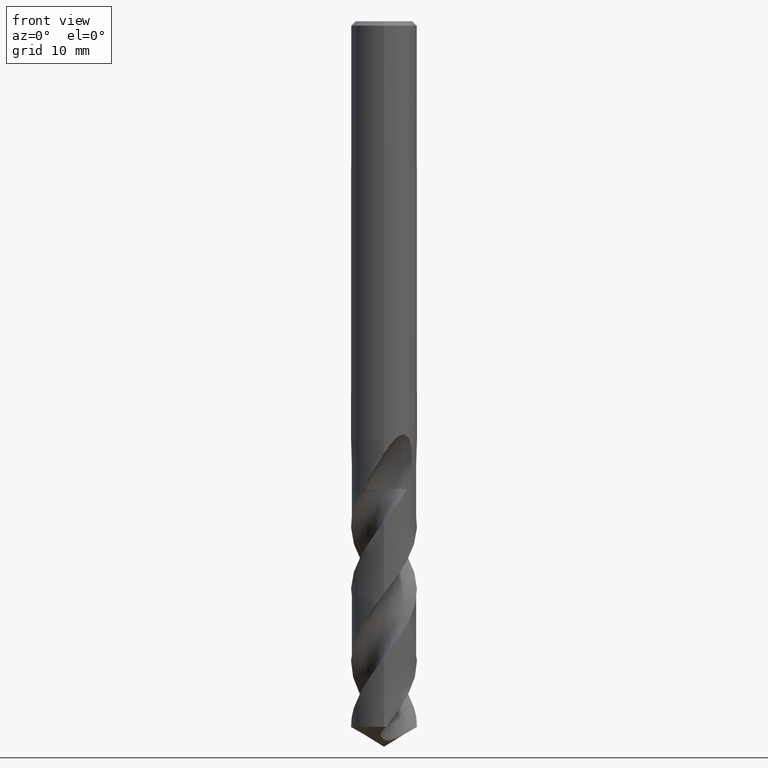
[diagram: clean part render]
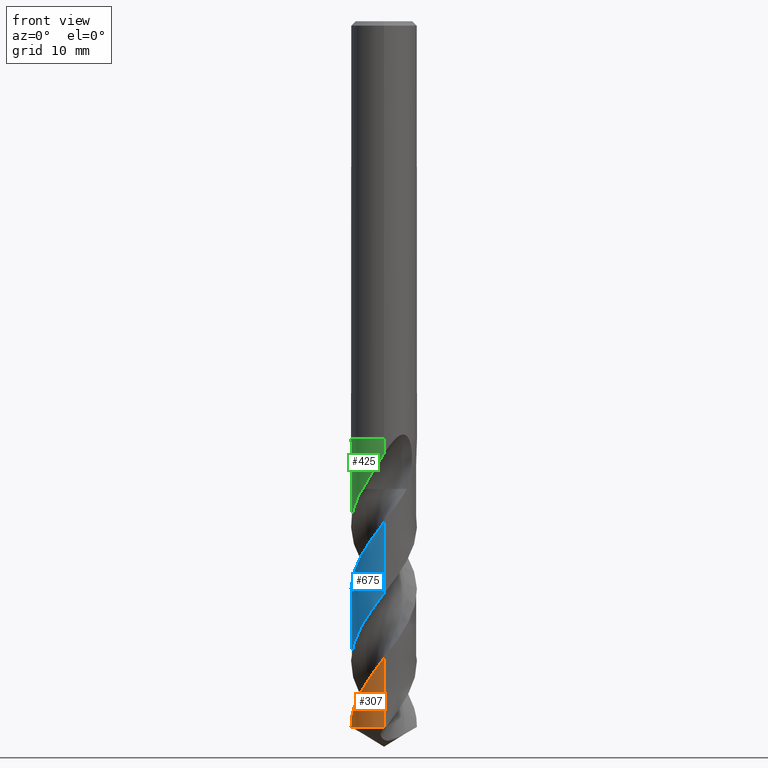
[diagram: same view with three faces highlighted in distinct colors, each labeled with its STEP entity id]
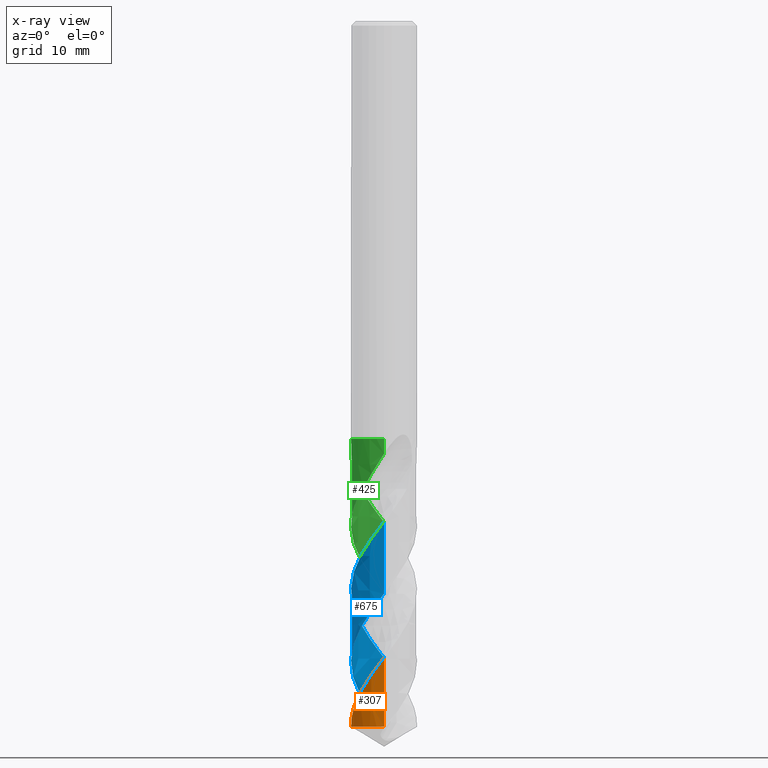
[diagram: x-ray of the same camera — body ghosted, the three highlighted faces saturated]
A machine part, front view with three faces highlighted in distinct colors.
The next image is the same camera in x-ray (body ghosted, the three faces saturated) — at least one of them is partly hidden behind the body in this view.
Their STEP definitions:

[orange] entity #307 — the highlighted conical surface has half-angle 0 deg.
#307=ADVANCED_FACE('',(#779),#780,.T.);
#387=VERTEX_POINT('',#868);
#441=VERTEX_POINT('',#926);
#485=VERTEX_POINT('',#974);
#549=EDGE_CURVE('',#441,#387,#1044,.T.);
#577=EDGE_CURVE('',#441,#485,#1074,.T.);
#695=EDGE_CURVE('',#387,#485,#1201,.T.);
#779=FACE_OUTER_BOUND('',#2352,.T.);
#780=CONICAL_SURFACE('',#2353,2.99995,3.81717005294894E-006);
#868=CARTESIAN_POINT('',(6.94614862813987E-014,-2.99997606256902,-57.9264292563744));
#926=CARTESIAN_POINT('',(3.67142020970811E-016,-3.0,-64.1974181429173));
#974=CARTESIAN_POINT('',(-2.9991532543519,0.0712724133896041,-64.1974181429173));
#1044=LINE('',#3505,#3506);
#1074=CIRCLE('',#3641,3.0);
#1201=B_SPLINE_CURVE_WITH_KNOTS('',3,(#4751,#4752,#4753,#4754,#4755,#4756,#4757,#4758,#4759,#4760,#4761,#4762,#4763,#4764,#4765,#4766,#4767,#4768,#4769,#4770,#4771,#4772,#4773,#4774,#4775,#4776,#4777,#4778,#4779,#4780,#4781,#4782,#4783,#4784,#4785,#4786,#4787,#4788,#4789,#4790,#4791,#4792,#4793,#4794,#4795,#4796,#4797,#4798,#4799,#4800,#4801,#4802,#4803,#4804,#4805,#4806,#4807,#4808,#4809,#4810,#4811,#4812,#4813,#4814,#4815,#4816,#4817,#4818,#4819,#4820,#4821,#4822,#4823,#4824,#4825,#4826,#4827,#4828,#4829,#4830,#4831,#4832,#4833,#4834),.UNSPECIFIED.,.F.,.F.,(4,2,2,2,2,2,2,2,2,2,2,2,2,2,2,2,2,2,2,2,2,2,2,2,2,2,2,2,2,2,2,2,2,2,2,2,2,2,2,2,2,4),(0.0,0.0993045210292612,0.133810146586551,0.198759543445894,0.516186536757586,0.627581894454717,0.698954349679033,0.766036704304854,0.856023660538922,0.957565071725223,1.34121237791108,1.63577937169116,1.9223173825441,3.79579356254117,5.1535138976402,5.91578713996514,6.68924775879507,7.07780415372784,7.44370135876606,8.79860002173452,9.56043517471912,10.3343050638382,10.7225490389914,11.0750226256082,12.4456977797414,13.2055550546594,13.9797088139891,14.7546094927896,16.2481453766306,16.4087732444605,17.6175978140626,18.3915158747033,19.9131723987767,19.963088714426,21.5787231515628,21.8964662538714,23.0955762658809,23.3231324880275,23.74801103866,25.2391784537945,25.6146622117499,26.7456793365661),.UNSPECIFIED.);
#2352=EDGE_LOOP('',(#4938,#4939,#4940));
#2353=AXIS2_PLACEMENT_3D('',#4941,#4942,#4943);
#3505=CARTESIAN_POINT('',(3.67135897939042E-016,-2.99995,-51.0987090714587));
#3506=VECTOR('',#5211,1.0);
#3641=AXIS2_PLACEMENT_3D('',#5232,#5233,#5234);
#4751=CARTESIAN_POINT('',(-2.08517356567501,2.15674644092882,-42.541));
#4752=CARTESIAN_POINT('',(-2.07136653232089,2.17009542306064,-42.5679607172071));
#4753=CARTESIAN_POINT('',(-2.05740288305878,2.18333963844889,-42.5949154837636));
#4754=CARTESIAN_POINT('',(-2.03833944362332,2.2010732531229,-42.6311910884536));
#4755=CARTESIAN_POINT('',(-2.03340304941831,2.20563452090541,-42.6405384031818));
#4756=CARTESIAN_POINT('',(-2.01910880561475,2.21875349629504,-42.6674654107753));
#4757=CARTESIAN_POINT('',(-2.00970140035085,2.22727860720342,-42.6850154723345));
#4758=CARTESIAN_POINT('',(-1.95378588229277,2.2773031306889,-42.7882460879038));
#4759=CARTESIAN_POINT('',(-1.90635447813945,2.31720611768696,-42.8713793274959));
#4760=CARTESIAN_POINT('',(-1.83822802720539,2.37085201738776,-42.9848535458934));
#4761=CARTESIAN_POINT('',(-1.82032208032303,2.38462963037159,-43.0141781612235));
#4762=CARTESIAN_POINT('',(-1.79052392669974,2.4070213715459,-43.0622691032216));
#4763=CARTESIAN_POINT('',(-1.77880494093268,2.4156951181162,-43.0810075399326));
#4764=CARTESIAN_POINT('',(-1.75589639937263,2.43239258513913,-43.1173443421457));
#4765=CARTESIAN_POINT('',(-1.74473046426743,2.44041445881005,-43.134922773311));
#4766=CARTESIAN_POINT('',(-1.71842371312067,2.4590403648595,-43.1760792555723));
#4767=CARTESIAN_POINT('',(-1.7032491589786,2.46957542179868,-43.1996223157209));
#4768=CARTESIAN_POINT('',(-1.67074038757862,2.49170252231617,-43.2497692509679));
#4769=CARTESIAN_POINT('',(-1.65322084627187,2.5033638553553,-43.2766101266082));
#4770=CARTESIAN_POINT('',(-1.56835059418453,2.55855591111031,-43.4065077294176));
#4771=CARTESIAN_POINT('',(-1.49994287342647,2.59921755867158,-43.5104159267366));
#4772=CARTESIAN_POINT('',(-1.37725341042054,2.6657792032713,-43.6937514899955));
#4773=CARTESIAN_POINT('',(-1.32314134453782,2.69304569446819,-43.7736260769849));
#4774=CARTESIAN_POINT('',(-1.21489793697561,2.74354289514315,-43.9309337941174));
#4775=CARTESIAN_POINT('',(-1.16079181051065,2.766872401133,-44.00831231946));
#4776=CARTESIAN_POINT('',(-0.747245220754315,2.93088177038523,-44.5918968135642));
#4777=CARTESIAN_POINT('',(-0.364400881494872,3.00262188342559,-45.092128487733));
#4778=CARTESIAN_POINT('',(0.301246600681809,2.99784399221996,-45.9653645696837));
#4779=CARTESIAN_POINT('',(0.579476629108054,2.95672180867058,-46.3309189368463));
#4780=CARTESIAN_POINT('',(0.998862417171053,2.83312411604424,-46.9035751683104));
#4781=CARTESIAN_POINT('',(1.14584609008904,2.77692373639258,-47.1091631917107));
#4782=CARTESIAN_POINT('',(1.4315944728874,2.64112563558017,-47.5242864739127));
#4783=CARTESIAN_POINT('',(1.56989211794067,2.56134592433265,-47.7330769820313));
#4784=CARTESIAN_POINT('',(1.76722743099324,2.42548043137687,-48.0470383029896));
#4785=CARTESIAN_POINT('',(1.83137449139064,2.37741903511863,-48.1519472001656));
#4786=CARTESIAN_POINT('',(1.95205726057974,2.2792112279197,-48.3557585299183));
#4787=CARTESIAN_POINT('',(2.00874409501485,2.22941103653896,-48.4545300449874));
#4788=CARTESIAN_POINT('',(2.26617821463591,1.98546344707412,-48.9196411149982));
#4789=CARTESIAN_POINT('',(2.44117035659592,1.76591533308861,-49.2845494919284));
#4790=CARTESIAN_POINT('',(2.66316777246103,1.38992974457594,-49.8564925805135));
#4791=CARTESIAN_POINT('',(2.73226734526263,1.24861296450732,-50.0620615484498));
#4792=CARTESIAN_POINT('',(2.84857569277941,0.954321713538972,-50.4772815153982));
#4793=CARTESIAN_POINT('',(2.89529427130937,0.801519973303657,-50.6862126930617));
#4794=CARTESIAN_POINT('',(2.94687847817654,0.567464801588643,-51.0002666278727));
#4795=CARTESIAN_POINT('',(2.9609762632949,0.48860391767592,-51.1051129813927));
#4796=CARTESIAN_POINT('',(2.98182217742696,0.33723559661302,-51.3052606348573));
#4797=CARTESIAN_POINT('',(2.98911592463882,0.264900838059879,-51.4004423135003));
#4798=CARTESIAN_POINT('',(3.01189817424962,-0.0895856301060033,-51.8663044604255));
#4799=CARTESIAN_POINT('',(2.99009601768584,-0.37286726919721,-52.2354660472074));
#4800=CARTESIAN_POINT('',(2.89500430446638,-0.802040163520816,-52.8112638235063));
#4801=CARTESIAN_POINT('',(2.84916156557794,-0.952128300489595,-53.0163849730299));
#4802=CARTESIAN_POINT('',(2.73345952294073,-1.24635871469747,-53.4312339839894));
#4803=CARTESIAN_POINT('',(2.66328988795835,-1.39001764375242,-53.640269222725));
#4804=CARTESIAN_POINT('',(2.50058711270984,-1.66504804598964,-54.0589710332706));
#4805=CARTESIAN_POINT('',(2.40836370596997,-1.79585014680383,-54.2678034445766));
#4806=CARTESIAN_POINT('',(2.10926954161825,-2.15535948931925,-54.881245255476));
#4807=CARTESIAN_POINT('',(1.87696516354511,-2.36045916975034,-55.2828624397855));
#4808=CARTESIAN_POINT('',(1.58950605847232,-2.54447932827907,-55.7299853791503));
#4809=CARTESIAN_POINT('',(1.5613059390824,-2.5618798968961,-55.7733932632667));
#4810=CARTESIAN_POINT('',(1.31848605543376,-2.70621185508577,-56.1436964306426));
#4811=CARTESIAN_POINT('',(1.08901376827304,-2.80644013303654,-56.4700096966144));
#4812=CARTESIAN_POINT('',(0.696589853822116,-2.92234611492188,-57.0061331733585));
#4813=CARTESIAN_POINT('',(0.540112726430063,-2.95526525027199,-57.2147934067345));
#4814=CARTESIAN_POINT('',(0.0705410059283623,-3.01551952592611,-57.8358235375508));
#4815=CARTESIAN_POINT('',(-0.245227733814685,-3.0063882109545,-58.244963146434));
#4816=CARTESIAN_POINT('',(-0.564028813663771,-2.94649809963033,-58.6699266597098));
#4817=CARTESIAN_POINT('',(-0.574143298194193,-2.94454399359108,-58.6834229535943));
#4818=CARTESIAN_POINT('',(-0.911327183544998,-2.8775969913416,-59.1338973602411));
#4819=CARTESIAN_POINT('',(-1.22546484117299,-2.75852072204823,-59.5689673763528));
#4820=CARTESIAN_POINT('',(-1.57017215392427,-2.55710197654036,-60.0919321143349));
#4821=CARTESIAN_POINT('',(-1.62570042227381,-2.52216303324169,-60.1778258807803));
#4822=CARTESIAN_POINT('',(-1.88505974063368,-2.34685131854478,-60.588328203468));
#4823=CARTESIAN_POINT('',(-2.07224830768865,-2.18335622461565,-60.9121462562362));
#4824=CARTESIAN_POINT('',(-2.26855404699597,-1.96362035761514,-61.2981569835071));
#4825=CARTESIAN_POINT('',(-2.29903926488694,-1.92783889480219,-61.3597103873753));
#4826=CARTESIAN_POINT('',(-2.38400329869486,-1.82323051583794,-61.5362251852768));
#4827=CARTESIAN_POINT('',(-2.43629237501203,-1.75274425658912,-61.6510597828984));
#4828=CARTESIAN_POINT('',(-2.65778322136612,-1.42508927606078,-62.1697459933858));
#4829=CARTESIAN_POINT('',(-2.78997289626212,-1.14494213587287,-62.5714499088032));
#4830=CARTESIAN_POINT('',(-2.89916334839268,-0.775140028463159,-63.0766182964137));
#4831=CARTESIAN_POINT('',(-2.91822648125649,-0.699956286106937,-63.1782022854915));
#4832=CARTESIAN_POINT('',(-2.98292787123912,-0.395775203409284,-63.5860750600233));
#4833=CARTESIAN_POINT('',(-3.00470479015349,-0.162386172242175,-63.8913763066836));
#4834=CARTESIAN_POINT('',(-2.9991532543519,0.071272413389631,-64.1974181429173));
#4938=ORIENTED_EDGE('',*,*,#549,.T.);
#4939=ORIENTED_EDGE('',*,*,#695,.T.);
#4940=ORIENTED_EDGE('',*,*,#577,.F.);
#4941=CARTESIAN_POINT('',(0.0,0.0,-51.0987090714587));
#4942=DIRECTION('',(0.0,-0.0,-1.0));
#4943=DIRECTION('',(0.0,1.0,0.0));
#5211=DIRECTION('',(-4.67453070045043E-022,3.81717005293967E-006,0.999999999992715));
#5232=CARTESIAN_POINT('',(0.0,0.0,-64.1974181429173));
#5233=DIRECTION('',(0.0,0.0,-1.0));
#5234=DIRECTION('',(0.0,1.0,0.0));

[blue] entity #675 — the highlighted conical surface has half-angle 0 deg.
#287=EDGE_CURVE('',#629,#377,#758,.T.);
#357=EDGE_CURVE('',#629,#683,#835,.T.);
#377=VERTEX_POINT('',#856);
#405=EDGE_CURVE('',#501,#683,#888,.T.);
#423=EDGE_CURVE('',#647,#501,#907,.T.);
#439=EDGE_CURVE('',#377,#647,#924,.T.);
#501=VERTEX_POINT('',#991);
#629=VERTEX_POINT('',#1129);
#647=VERTEX_POINT('',#1150);
#675=ADVANCED_FACE('',(#1179),#1180,.T.);
#683=VERTEX_POINT('',#1189);
#758=B_SPLINE_CURVE_WITH_KNOTS('',3,(#2188,#2189,#2190,#2191,#2192,#2193,#2194,#2195,#2196,#2197,#2198,#2199,#2200,#2201,#2202,#2203,#2204,#2205,#2206,#2207,#2208,#2209,#2210,#2211,#2212,#2213,#2214,#2215,#2216,#2217,#2218,#2219,#2220,#2221,#2222,#2223,#2224,#2225,#2226,#2227,#2228,#2229,#2230,#2231,#2232,#2233,#2234,#2235,#2236,#2237,#2238,#2239,#2240,#2241,#2242,#2243,#2244,#2245,#2246,#2247,#2248,#2249,#2250,#2251,#2252,#2253,#2254,#2255,#2256,#2257,#2258,#2259,#2260,#2261),.UNSPECIFIED.,.F.,.F.,(4,2,2,2,2,2,2,2,2,2,2,2,2,2,2,2,2,2,2,2,2,2,2,2,2,2,2,2,2,2,2,2,2,2,2,2,4),(0.0,0.734443559610835,2.28909020284953,3.87107672440052,4.52092565825091,4.91625280009172,5.51545167710066,6.6136024122401,7.39941377184517,8.36751806394183,9.15465356459216,9.91633170437378,11.4959157069107,12.287083807646,12.8988367862176,13.8595049052138,14.646903637702,15.4386845711018,17.0182129384811,17.8092923130332,18.416636972115,19.766660296907,20.054223627147,20.9482154479031,21.3488712235484,21.9156118933917,23.0006172359424,24.9596405400062,25.9032294978141,26.1351377107136,26.2262112697147,26.4138152138454,26.5309473395437,26.6581164613636,26.8612732997372,27.1112933916468,27.4847013236414),.UNSPECIFIED.);
#835=CIRCLE('',#2620,3.0);
#856=CARTESIAN_POINT('',(2.14998726002023E-014,-2.9999537544148,-52.082268816943));
#888=LINE('',#2967,#2968);
#907=B_SPLINE_CURVE_WITH_KNOTS('',3,(#3033,#3034,#3035,#3036,#3037,#3038,#3039,#3040,#3041,#3042,#3043,#3044,#3045,#3046,#3047,#3048,#3049,#3050,#3051,#3052,#3053,#3054,#3055,#3056,#3057,#3058,#3059,#3060,#3061,#3062,#3063,#3064,#3065,#3066,#3067,#3068,#3069,#3070,#3071,#3072,#3073,#3074,#3075,#3076,#3077,#3078,#3079,#3080,#3081,#3082,#3083,#3084,#3085,#3086,#3087,#3088,#3089,#3090,#3091,#3092,#3093,#3094,#3095,#3096,#3097,#3098,#3099,#3100,#3101,#3102,#3103,#3104,#3105,#3106,#3107,#3108,#3109,#3110,#3111,#3112,#3113,#3114,#3115,#3116),.UNSPECIFIED.,.F.,.F.,(4,2,2,2,2,2,2,2,2,2,2,2,2,2,2,2,2,2,2,2,2,2,2,2,2,2,2,2,2,2,2,2,2,2,2,2,2,2,2,2,2,4),(0.0,0.0993045209650223,0.133810146428428,0.198759542952531,0.516186536699996,0.62758189448021,0.698954349675365,0.766036704284108,0.856023660495429,0.957565071765724,1.34121237799706,1.63577937175332,1.92231738243589,3.79579359251668,5.15351398343088,5.91578721984827,6.68924783986393,7.07780423442178,7.4437013965498,8.79860010794029,9.56043525586342,10.3343051465982,10.7225491212389,11.0750226756851,12.4456979071229,13.2055551735477,13.9797089353509,14.754609609826,16.2481457494753,16.408773560545,17.6175985892719,18.3915166199408,19.9131731669648,19.9630894831172,21.5787239955728,21.896467030199,23.0955768713887,23.3231330582614,23.7480115365779,25.2391787308531,25.6146624317587,26.7456793902221),.UNSPECIFIED.);
#924=LINE('',#3164,#3165);
#991=CARTESIAN_POINT('',(-8.38946031381558E-014,2.99997606256902,-57.9264292563744));
#1129=CARTESIAN_POINT('',(-0.183229110471668,2.9943992875159,-64.1974181429173));
#1150=CARTESIAN_POINT('',(-1.14867862420034E-015,-2.99992889663983,-45.5701735662399));
#1179=FACE_OUTER_BOUND('',#4532,.T.);
#1180=CONICAL_SURFACE('',#4533,2.99995,3.81717005294894E-006);
#1189=CARTESIAN_POINT('',(-3.67577094231066E-016,3.0,-64.1974181429173));
#2188=CARTESIAN_POINT('',(-0.183229110471697,2.99439928751591,-64.1974181429173));
#2189=CARTESIAN_POINT('',(-0.331222931545339,2.98534271074487,-64.0026106572281));
#2190=CARTESIAN_POINT('',(-0.478525971048807,2.96531710034107,-63.8087541706384));
#2191=CARTESIAN_POINT('',(-0.931749995659276,2.86894572270361,-63.2026383116155));
#2192=CARTESIAN_POINT('',(-1.22736546856826,2.75547491769872,-62.7904098715489));
#2193=CARTESIAN_POINT('',(-1.77741178643826,2.43790330460534,-61.960010832593));
#2194=CARTESIAN_POINT('',(-2.02729857563845,2.23439401434722,-61.5406282539931));
#2195=CARTESIAN_POINT('',(-2.32772802437679,1.8970784417934,-60.9492353271317));
#2196=CARTESIAN_POINT('',(-2.40866600234853,1.79319887183331,-60.7776183267302));
#2197=CARTESIAN_POINT('',(-2.52747718270542,1.61807951104514,-60.5007557342261));
#2198=CARTESIAN_POINT('',(-2.56968963147237,1.550155499512,-60.3960946169908));
#2199=CARTESIAN_POINT('',(-2.6688215825226,1.37547863353717,-60.1322530307751));
#2200=CARTESIAN_POINT('',(-2.72219427667068,1.26659853685698,-59.9725364282166));
#2201=CARTESIAN_POINT('',(-2.85442716695107,0.949498371069948,-59.5219643153244));
#2202=CARTESIAN_POINT('',(-2.91690257316277,0.735503014035349,-59.233154072448));
#2203=CARTESIAN_POINT('',(-2.98255674590616,0.359895663163376,-58.7332112095477));
#2204=CARTESIAN_POINT('',(-2.99743257080565,0.20142787123132,-58.5236756044869));
#2205=CARTESIAN_POINT('',(-3.0024451227581,-0.153591105931906,-58.0582230902192));
#2206=CARTESIAN_POINT('',(-2.98600577379753,-0.349362932734731,-57.8031812546149));
#2207=CARTESIAN_POINT('',(-2.92176804252244,-0.698942527800331,-57.3375938402897));
#2208=CARTESIAN_POINT('',(-2.88056557508459,-0.852940251190449,-57.1277721870316));
#2209=CARTESIAN_POINT('',(-2.77587675855997,-1.14806453027687,-56.7168956588505));
#2210=CARTESIAN_POINT('',(-2.71324581651436,-1.2891602508928,-56.5157997355726));
#2211=CARTESIAN_POINT('',(-2.48793945842625,-1.70656972615924,-55.8955527201081));
#2212=CARTESIAN_POINT('',(-2.29190317791233,-1.96198661322953,-55.4760397581874));
#2213=CARTESIAN_POINT('',(-1.94261197904425,-2.29166679823651,-54.8479796483152));
#2214=CARTESIAN_POINT('',(-1.81758212521875,-2.39201153693556,-54.6392680411236));
#2215=CARTESIAN_POINT('',(-1.5831314675511,-2.55122302485829,-54.2669969386888));
#2216=CARTESIAN_POINT('',(-1.4765927612699,-2.61434189751808,-54.1038955700008));
#2217=CARTESIAN_POINT('',(-1.19316819503322,-2.7593368300821,-53.6864106195821));
#2218=CARTESIAN_POINT('',(-1.01175991806343,-2.830897650889,-53.433194062877));
#2219=CARTESIAN_POINT('',(-0.671221681211815,-2.92825142168113,-52.9694083684693));
#2220=CARTESIAN_POINT('',(-0.514813522907859,-2.95973655163232,-52.7594953322546));
#2221=CARTESIAN_POINT('',(-0.19785116762285,-2.99769937208216,-52.3404581574834));
#2222=CARTESIAN_POINT('',(-0.0374914182579082,-3.00400654148884,-52.1314407036155));
#2223=CARTESIAN_POINT('',(0.442573535870078,-2.98433630263061,-51.5031883726109));
#2224=CARTESIAN_POINT('',(0.758105420997806,-2.92017089779859,-51.0836569237842));
#2225=CARTESIAN_POINT('',(1.20758571346039,-2.75083858687731,-50.4555626457345));
#2226=CARTESIAN_POINT('',(1.35260205273786,-2.68247919333067,-50.2468548279263));
#2227=CARTESIAN_POINT('',(1.59776097299668,-2.54202471268676,-49.8757556200087));
#2228=CARTESIAN_POINT('',(1.70047033119881,-2.47450688204529,-49.7138361302021));
#2229=CARTESIAN_POINT('',(2.01756223315339,-2.23691385540631,-49.1941599569605));
#2230=CARTESIAN_POINT('',(2.21262843633484,-2.04407947971187,-48.8405110179725));
#2231=CARTESIAN_POINT('',(2.41414001128825,-1.78183588643457,-48.4053826208574));
#2232=CARTESIAN_POINT('',(2.44816795294909,-1.734790307594,-48.3288380099144));
#2233=CARTESIAN_POINT('',(2.58261494429986,-1.53703165045718,-48.0144862839406));
#2234=CARTESIAN_POINT('',(2.67074456970941,-1.37829271178606,-47.7781856584388));
#2235=CARTESIAN_POINT('',(2.77695914807446,-1.13786234384789,-47.4344805189424));
#2236=CARTESIAN_POINT('',(2.8067619189859,-1.06221256035522,-47.3282019692004));
#2237=CARTESIAN_POINT('',(2.87117343030304,-0.87702082963356,-47.0711234306728));
#2238=CARTESIAN_POINT('',(2.90258352568701,-0.76663643415925,-46.9199036134911));
#2239=CARTESIAN_POINT('',(2.97544975451591,-0.440878344339708,-46.4811311051962));
#2240=CARTESIAN_POINT('',(2.99977512725648,-0.222024036693624,-46.1956039348289));
#2241=CARTESIAN_POINT('',(3.00020805004784,0.394925895658162,-45.3887476921287));
#2242=CARTESIAN_POINT('',(2.92171978557707,0.788377774855896,-44.8669431095279));
#2243=CARTESIAN_POINT('',(2.69452337867403,1.33260602644739,-44.1001536703117));
#2244=CARTESIAN_POINT('',(2.60605918887048,1.49746515998998,-43.8654120426781));
#2245=CARTESIAN_POINT('',(2.47877467308362,1.69034962629147,-43.5496021240808));
#2246=CARTESIAN_POINT('',(2.45314256697022,1.72730538504268,-43.4869884798755));
#2247=CARTESIAN_POINT('',(2.41684152933159,1.7772743145915,-43.3989635935048));
#2248=CARTESIAN_POINT('',(2.40654837323236,1.79118499786646,-43.3740750970355));
#2249=CARTESIAN_POINT('',(2.37489119044162,1.83321243181743,-43.297654985639));
#2250=CARTESIAN_POINT('',(2.3615947994104,1.85022873279253,-43.264753056749));
#2251=CARTESIAN_POINT('',(2.33021807146737,1.88943781961645,-43.1934053876788));
#2252=CARTESIAN_POINT('',(2.31778624107811,1.90467515166537,-43.16627151627));
#2253=CARTESIAN_POINT('',(2.29101528625853,1.93681182417651,-43.1102144784982));
#2254=CARTESIAN_POINT('',(2.27662753153048,1.95371339154804,-43.0813866000999));
#2255=CARTESIAN_POINT('',(2.23799441330163,1.9980499931177,-43.007329672346));
#2256=CARTESIAN_POINT('',(2.21306388211493,2.02566697597014,-42.9627238637705));
#2257=CARTESIAN_POINT('',(2.15462212938878,2.08790167486583,-42.8650534962469));
#2258=CARTESIAN_POINT('',(2.12058757123663,2.12252643748726,-42.8126280824543));
#2259=CARTESIAN_POINT('',(2.0309336921915,2.20916089331929,-42.6849599013091));
#2260=CARTESIAN_POINT('',(1.97333806931313,2.26094131056743,-42.6117763562006));
#2261=CARTESIAN_POINT('',(1.91162049097478,2.31197126018779,-42.541));
#2620=AXIS2_PLACEMENT_3D('',#5012,#5013,#5014);
#2967=CARTESIAN_POINT('',(-3.67570971199297E-016,2.99995,-51.0987090714587));
#2968=VECTOR('',#5059,1.0);
#3033=CARTESIAN_POINT('',(2.08517356567501,-2.15674644092882,-42.541));
#3034=CARTESIAN_POINT('',(2.07136653232982,-2.170095423052,-42.5679607171896));
#3035=CARTESIAN_POINT('',(2.05740288306707,-2.18333963844122,-42.5949154837478));
#3036=CARTESIAN_POINT('',(2.03833944362726,-2.20107325311923,-42.6311910884461));
#3037=CARTESIAN_POINT('',(2.03340304943714,-2.20563452088801,-42.6405384031462));
#3038=CARTESIAN_POINT('',(2.0191088056883,-2.21875349622778,-42.6674654106371));
#3039=CARTESIAN_POINT('',(2.00970140047016,-2.2272786070954,-42.6850154721121));
#3040=CARTESIAN_POINT('',(1.95378588236468,-2.27730313063062,-42.7882460877811));
#3041=CARTESIAN_POINT('',(1.9063544781887,-2.31720611764672,-42.8713793274116));
#3042=CARTESIAN_POINT('',(1.83822802725425,-2.37085201734974,-42.9848535458127));
#3043=CARTESIAN_POINT('',(1.8203220803714,-2.38462963033502,-43.0141781611451));
#3044=CARTESIAN_POINT('',(1.7905239267176,-2.40702137153266,-43.062269103193));
#3045=CARTESIAN_POINT('',(1.77880494094997,-2.41569511810347,-43.0810075399051));
#3046=CARTESIAN_POINT('',(1.75589639938842,-2.43239258512774,-43.1173443421208));
#3047=CARTESIAN_POINT('',(1.74473046428327,-2.44041445879868,-43.1349227732861));
#3048=CARTESIAN_POINT('',(1.7184237131452,-2.4590403648423,-43.1760792555341));
#3049=CARTESIAN_POINT('',(1.70324915900899,-2.46957542177771,-43.1996223156739));
#3050=CARTESIAN_POINT('',(1.67074038759414,-2.49170252230595,-43.2497692509442));
#3051=CARTESIAN_POINT('',(1.65322084627693,-2.50336385535204,-43.2766101266005));
#3052=CARTESIAN_POINT('',(1.5683505941923,-2.55855591110509,-43.4065077294057));
#3053=CARTESIAN_POINT('',(1.4999428734418,-2.59921755866335,-43.5104159267137));
#3054=CARTESIAN_POINT('',(1.37725341041438,-2.66577920327456,-43.6937514900046));
#3055=CARTESIAN_POINT('',(1.32314134453175,-2.6930456944711,-43.7736260769938));
#3056=CARTESIAN_POINT('',(1.21489793700394,-2.74354289512988,-43.9309337940763));
#3057=CARTESIAN_POINT('',(1.16079181057171,-2.76687240110662,-44.0083123193727));
#3058=CARTESIAN_POINT('',(0.747245215096435,-2.9308817726432,-44.5918968215558));
#3059=CARTESIAN_POINT('',(0.364400869372548,-3.00262188569272,-45.0921285035623));
#3060=CARTESIAN_POINT('',(-0.301246630460852,-2.99784399030013,-45.9653646088029));
#3061=CARTESIAN_POINT('',(-0.579476669953529,-2.95672180175718,-46.3309189907404));
#3062=CARTESIAN_POINT('',(-0.998862465742172,-2.83312409885286,-46.9035752356874));
#3063=CARTESIAN_POINT('',(-1.14584613657048,-2.776923717144,-47.1091632576306));
#3064=CARTESIAN_POINT('',(-1.43159451626058,-2.64112561208485,-47.5242865385535));
#3065=CARTESIAN_POINT('',(-1.5698921602147,-2.5613458984384,-47.7330770469368));
#3066=CARTESIAN_POINT('',(-1.76722747116512,-2.42548040210521,-48.0470383680851));
#3067=CARTESIAN_POINT('',(-1.83137453070607,-2.37741900483074,-48.15194726515));
#3068=CARTESIAN_POINT('',(-1.95205729134443,-2.27921120127809,-48.3557585832042));
#3069=CARTESIAN_POINT('',(-2.00874411852033,-2.22941101506075,-48.4545300867233));
#3070=CARTESIAN_POINT('',(-2.26617823706273,-1.98546342287508,-48.9196411582274));
#3071=CARTESIAN_POINT('',(-2.44117038254983,-1.7659152987889,-49.2845495479149));
#3072=CARTESIAN_POINT('',(-2.66316779634387,-1.38992969869679,-49.8564926481617));
#3073=CARTESIAN_POINT('',(-2.73226736627181,-1.24861291840141,-50.0620616148449));
#3074=CARTESIAN_POINT('',(-2.84857570865482,-0.95432166620553,-50.4772815808169));
#3075=CARTESIAN_POINT('',(-2.89529428473253,-0.801519924882488,-50.686212758842));
#3076=CARTESIAN_POINT('',(-2.94687848770726,-0.567464752081234,-51.0002666938955));
#3077=CARTESIAN_POINT('',(-2.9609762714823,-0.488603868042122,-51.1051130472588));
#3078=CARTESIAN_POINT('',(-2.98182218216022,-0.337235553330764,-51.3052606918719));
#3079=CARTESIAN_POINT('',(-2.98911592773511,-0.264900801299313,-51.4004423618554));
#3080=CARTESIAN_POINT('',(-3.01189817436418,0.0895856762864942,-51.8663045209416));
#3081=CARTESIAN_POINT('',(-2.9900960114766,0.372867331049838,-52.2354661280782));
#3082=CARTESIAN_POINT('',(-2.89500428409829,0.802040236693586,-52.8112639228499));
#3083=CARTESIAN_POINT('',(-2.8491615419821,0.952128370805245,-53.0163850702284));
#3084=CARTESIAN_POINT('',(-2.73345949273672,1.24635878100088,-53.4312340794528));
#3085=CARTESIAN_POINT('',(-2.66328985404819,1.39001770878175,-53.6402693187283));
#3086=CARTESIAN_POINT('',(-2.50058707225591,1.66504810665683,-54.0589711286286));
#3087=CARTESIAN_POINT('',(-2.40836366290219,1.79585020447587,-54.2678035387961));
#3088=CARTESIAN_POINT('',(-2.1092694570249,2.15535957961906,-54.8812454176294));
#3089=CARTESIAN_POINT('',(-1.87696502862601,2.36045928389713,-55.2828626690583));
#3090=CARTESIAN_POINT('',(-1.58950587520039,2.54447944261528,-55.7299856621291));
#3091=CARTESIAN_POINT('',(-1.56130576459082,2.56188000308683,-55.7733935309542));
#3092=CARTESIAN_POINT('',(-1.31848580077571,2.70621198784292,-56.1436968070644));
#3093=CARTESIAN_POINT('',(-1.08901341489298,2.80644027858558,-56.4700101951203));
#3094=CARTESIAN_POINT('',(-0.696589397182305,2.92234622343335,-57.0061337871462));
#3095=CARTESIAN_POINT('',(-0.540112270907924,2.95526533317559,-57.2147940128718));
#3096=CARTESIAN_POINT('',(-0.0705405436346045,3.01551953716927,-57.8358241417033));
#3097=CARTESIAN_POINT('',(0.245228198712048,3.00638817345444,-58.2449637535258));
#3098=CARTESIAN_POINT('',(0.564029273240131,2.94649801165927,-58.6699272727414));
#3099=CARTESIAN_POINT('',(0.574143757517615,2.94454390403214,-58.6834235667625));
#3100=CARTESIAN_POINT('',(0.911327645379467,2.87759684660935,-59.133897992897));
#3101=CARTESIAN_POINT('',(1.22546529633679,2.75852052151329,-59.5689680234893));
#3102=CARTESIAN_POINT('',(1.57017257452221,2.5571017179102,-60.0919327609717));
#3103=CARTESIAN_POINT('',(1.62570082502518,2.52216277326938,-60.1778265089585));
#3104=CARTESIAN_POINT('',(1.88506007360074,2.34685104719582,-60.5883287654894));
#3105=CARTESIAN_POINT('',(2.07224859028144,2.18335595226422,-60.9121467692554));
#3106=CARTESIAN_POINT('',(2.26855427425822,1.96362009488363,-61.2981574384864));
#3107=CARTESIAN_POINT('',(2.29903948316322,1.92783863431599,-61.3597108324576));
#3108=CARTESIAN_POINT('',(2.38400349090287,1.82323026377244,-61.5362256002625));
#3109=CARTESIAN_POINT('',(2.43629255072782,1.75274401157257,-61.6510601779716));
#3110=CARTESIAN_POINT('',(2.6577833304792,1.4250890622749,-62.1697463065243));
#3111=CARTESIAN_POINT('',(2.78997296462567,1.1449419565104,-62.5714501594697));
#3112=CARTESIAN_POINT('',(2.89916338209915,0.775139901170985,-63.076618468879));
#3113=CARTESIAN_POINT('',(2.91822650880209,0.699956169909145,-63.1782024420418));
#3114=CARTESIAN_POINT('',(2.98292787791943,0.395775131933621,-63.5860751536291));
#3115=CARTESIAN_POINT('',(3.0047047893025,0.162386136424744,-63.8913763535966));
#3116=CARTESIAN_POINT('',(2.9991532543519,-0.0712724133896327,-64.1974181429173));
#3164=CARTESIAN_POINT('',(3.67180595030591E-016,-2.99995,-51.0987090714587));
#3165=VECTOR('',#5094,1.0);
#4532=EDGE_LOOP('',(#5358,#5359,#5360,#5361,#5362));
#4533=AXIS2_PLACEMENT_3D('',#5363,#5364,#5365);
#5012=CARTESIAN_POINT('',(0.0,0.0,-64.1974181429173));
#5013=DIRECTION('',(0.0,0.0,-1.0));
#5014=DIRECTION('',(0.0,1.0,0.0));
#5059=DIRECTION('',(-4.67453070045043E-022,3.81717005293967E-006,-0.999999999992715));
#5094=DIRECTION('',(-4.67453070045043E-022,3.81717005293967E-006,0.999999999992715));
#5358=ORIENTED_EDGE('',*,*,#405,.T.);
#5359=ORIENTED_EDGE('',*,*,#357,.F.);
#5360=ORIENTED_EDGE('',*,*,#287,.T.);
#5361=ORIENTED_EDGE('',*,*,#439,.T.);
#5362=ORIENTED_EDGE('',*,*,#423,.T.);
#5363=CARTESIAN_POINT('',(0.0,0.0,-51.0987090714587));
#5364=DIRECTION('',(0.0,-0.0,-1.0));
#5365=DIRECTION('',(0.0,1.0,0.0));

[green] entity #425 — the highlighted conical surface has half-angle 0 deg.
#259=VERTEX_POINT('',#727);
#285=VERTEX_POINT('',#756);
#289=EDGE_CURVE('',#367,#665,#760,.T.);
#327=EDGE_CURVE('',#451,#557,#800,.T.);
#367=VERTEX_POINT('',#845);
#425=ADVANCED_FACE('',(#909),#910,.T.);
#451=VERTEX_POINT('',#936);
#487=VERTEX_POINT('',#976);
#493=EDGE_CURVE('',#259,#451,#983,.T.);
#521=EDGE_CURVE('',#557,#285,#1015,.T.);
#541=EDGE_CURVE('',#487,#259,#1036,.T.);
#557=VERTEX_POINT('',#1053);
#613=EDGE_CURVE('',#665,#487,#1112,.T.);
#665=VERTEX_POINT('',#1168);
#687=VERTEX_POINT('',#1193);
#689=EDGE_CURVE('',#285,#687,#1195,.T.);
#697=EDGE_CURVE('',#687,#367,#1203,.T.);
#727=CARTESIAN_POINT('',(-2.44084135681096,1.74406417909508,-40.8983955287863));
#756=CARTESIAN_POINT('',(-2.41646253959328E-014,2.9999537544148,-52.0822688169429));
#760=LINE('',#2264,#2265);
#800=B_SPLINE_CURVE_WITH_KNOTS('',3,(#2400,#2401,#2402,#2403,#2404,#2405,#2406,#2407,#2408,#2409,#2410,#2411,#2412,#2413,#2414,#2415,#2416,#2417,#2418,#2419,#2420,#2421,#2422,#2423,#2424,#2425,#2426,#2427,#2428,#2429,#2430,#2431,#2432,#2433,#2434,#2435,#2436,#2437,#2438,#2439,#2440,#2441,#2442,#2443,#2444,#2445,#2446,#2447,#2448,#2449,#2450,#2451,#2452,#2453,#2454,#2455,#2456,#2457,#2458,#2459,#2460,#2461,#2462,#2463,#2464,#2465,#2466,#2467,#2468,#2469,#2470,#2471,#2472,#2473,#2474,#2475,#2476,#2477,#2478,#2479,#2480,#2481,#2482,#2483),.UNSPECIFIED.,.F.,.F.,(4,2,2,2,2,2,2,2,2,2,2,2,2,2,2,2,2,2,2,2,2,2,2,2,2,2,2,2,2,2,2,2,2,2,2,2,2,2,2,2,2,4),(0.0,0.0993045210292612,0.133810146586551,0.198759543445894,0.516186536757586,0.627581894454717,0.698954349679033,0.766036704304854,0.856023660538922,0.957565071725223,1.34121237791108,1.63577937169116,1.9223173825441,3.79579356254117,5.1535138976402,5.91578713996514,6.68924775879507,7.07780415372784,7.44370135876606,8.79860002173452,9.56043517471912,10.3343050638382,10.7225490389914,11.0750226256082,12.4456977797414,13.2055550546594,13.9797088139891,14.7546094927896,16.2481453766306,16.4087732444605,17.6175978140626,18.3915158747033,19.9131723987767,19.963088714426,21.5787231515628,21.8964662538714,23.0955762658809,23.3231324880275,23.74801103866,25.2391784537945,25.6146622117499,26.7456793365661),.UNSPECIFIED.);
#845=CARTESIAN_POINT('',(8.91137542465158E-013,-2.99990516110162,-39.352075371144));
#909=FACE_OUTER_BOUND('',#3118,.T.);
#910=CONICAL_SURFACE('',#3119,2.99995,3.81717005294894E-006);
#936=CARTESIAN_POINT('',(-2.08517356567501,2.15674644092882,-42.541));
#976=CARTESIAN_POINT('',(-2.27206572632338,1.95885613184496,-38.0));
#983=B_SPLINE_CURVE_WITH_KNOTS('',3,(#3292,#3293,#3294,#3295),.UNSPECIFIED.,.F.,.F.,(4,4),(0.0,1.72402017940216),.UNSPECIFIED.);
#1015=LINE('',#3430,#3431);
#1036=B_SPLINE_CURVE_WITH_KNOTS('',3,(#3489,#3490,#3491,#3492,#3493,#3494,#3495,#3496),.UNSPECIFIED.,.F.,.F.,(4,2,2,4),(0.0,0.560998818342162,1.34596569909496,2.09615632797627),.UNSPECIFIED.);
#1053=CARTESIAN_POINT('',(3.14686253189549E-015,2.99992889663983,-45.5701735662399));
#1112=CIRCLE('',#3791,2.9999);
#1168=CARTESIAN_POINT('',(3.67129774907273E-016,-2.9999,-38.0));
#1193=CARTESIAN_POINT('',(-1.91162049097478,-2.31197126018779,-42.541));
#1195=B_SPLINE_CURVE_WITH_KNOTS('',3,(#4565,#4566,#4567,#4568,#4569,#4570,#4571,#4572,#4573,#4574,#4575,#4576,#4577,#4578,#4579,#4580,#4581,#4582,#4583,#4584,#4585,#4586,#4587,#4588,#4589,#4590,#4591,#4592,#4593,#4594,#4595,#4596,#4597,#4598,#4599,#4600,#4601,#4602,#4603,#4604,#4605,#4606,#4607,#4608,#4609,#4610,#4611,#4612,#4613,#4614,#4615,#4616,#4617,#4618,#4619,#4620,#4621,#4622,#4623,#4624,#4625,#4626,#4627,#4628,#4629,#4630,#4631,#4632,#4633,#4634,#4635,#4636,#4637,#4638),.UNSPECIFIED.,.F.,.F.,(4,2,2,2,2,2,2,2,2,2,2,2,2,2,2,2,2,2,2,2,2,2,2,2,2,2,2,2,2,2,2,2,2,2,2,2,4),(0.0,0.734443559703107,2.28909020553067,3.87107672722454,4.52092566244111,4.91625280420442,5.51545164311799,6.61360359440803,7.39941493432087,8.36750742411427,9.15464305759537,9.9163455183128,11.4959295069473,12.2870976926205,12.8988198275909,13.8596703122896,14.6470669888647,15.4388465109275,17.018371948929,17.8094509178034,18.4165457401191,19.7668953161653,20.054317907521,20.9488934499118,21.3491657615244,21.9204826354196,23.0085360274575,24.9625273542336,25.9039926740076,26.1358596392539,26.2265704914769,26.4136603411563,26.5308606774227,26.6576798480513,26.8624736480027,27.1158190130307,27.4740734602214),.UNSPECIFIED.);
#1203=B_SPLINE_CURVE_WITH_KNOTS('',3,(#4837,#4838,#4839,#4840,#4841,#4842,#4843,#4844,#4845,#4846,#4847,#4848,#4849,#4850),.UNSPECIFIED.,.F.,.F.,(4,2,2,2,2,2,4),(0.0,1.46984047530655,2.27239969089737,2.99930593073335,3.84377874942793,4.85817176604029,5.38253842740098),.UNSPECIFIED.);
#2264=CARTESIAN_POINT('',(3.67135897939042E-016,-2.99995,-51.0987090714587));
#2265=VECTOR('',#4914,1.0);
#2400=CARTESIAN_POINT('',(-2.08517356567501,2.15674644092882,-42.541));
#2401=CARTESIAN_POINT('',(-2.07136653232089,2.17009542306064,-42.5679607172071));
#2402=CARTESIAN_POINT('',(-2.05740288305878,2.18333963844889,-42.5949154837636));
#2403=CARTESIAN_POINT('',(-2.03833944362332,2.2010732531229,-42.6311910884536));
#2404=CARTESIAN_POINT('',(-2.03340304941831,2.20563452090541,-42.6405384031818));
#2405=CARTESIAN_POINT('',(-2.01910880561475,2.21875349629504,-42.6674654107753));
#2406=CARTESIAN_POINT('',(-2.00970140035085,2.22727860720342,-42.6850154723345));
#2407=CARTESIAN_POINT('',(-1.95378588229277,2.2773031306889,-42.7882460879038));
#2408=CARTESIAN_POINT('',(-1.90635447813945,2.31720611768696,-42.8713793274959));
#2409=CARTESIAN_POINT('',(-1.83822802720539,2.37085201738776,-42.9848535458934));
#2410=CARTESIAN_POINT('',(-1.82032208032303,2.38462963037159,-43.0141781612235));
#2411=CARTESIAN_POINT('',(-1.79052392669974,2.4070213715459,-43.0622691032216));
#2412=CARTESIAN_POINT('',(-1.77880494093268,2.4156951181162,-43.0810075399326));
#2413=CARTESIAN_POINT('',(-1.75589639937263,2.43239258513913,-43.1173443421457));
#2414=CARTESIAN_POINT('',(-1.74473046426743,2.44041445881005,-43.134922773311));
#2415=CARTESIAN_POINT('',(-1.71842371312067,2.4590403648595,-43.1760792555723));
#2416=CARTESIAN_POINT('',(-1.7032491589786,2.46957542179868,-43.1996223157209));
#2417=CARTESIAN_POINT('',(-1.67074038757862,2.49170252231617,-43.2497692509679));
#2418=CARTESIAN_POINT('',(-1.65322084627187,2.5033638553553,-43.2766101266082));
#2419=CARTESIAN_POINT('',(-1.56835059418453,2.55855591111031,-43.4065077294176));
#2420=CARTESIAN_POINT('',(-1.49994287342647,2.59921755867158,-43.5104159267366));
#2421=CARTESIAN_POINT('',(-1.37725341042054,2.6657792032713,-43.6937514899955));
#2422=CARTESIAN_POINT('',(-1.32314134453782,2.69304569446819,-43.7736260769849));
#2423=CARTESIAN_POINT('',(-1.21489793697561,2.74354289514315,-43.9309337941174));
#2424=CARTESIAN_POINT('',(-1.16079181051065,2.766872401133,-44.00831231946));
#2425=CARTESIAN_POINT('',(-0.747245220754315,2.93088177038523,-44.5918968135642));
#2426=CARTESIAN_POINT('',(-0.364400881494872,3.00262188342559,-45.092128487733));
#2427=CARTESIAN_POINT('',(0.301246600681809,2.99784399221996,-45.9653645696837));
#2428=CARTESIAN_POINT('',(0.579476629108054,2.95672180867058,-46.3309189368463));
#2429=CARTESIAN_POINT('',(0.998862417171053,2.83312411604424,-46.9035751683104));
#2430=CARTESIAN_POINT('',(1.14584609008904,2.77692373639258,-47.1091631917107));
#2431=CARTESIAN_POINT('',(1.4315944728874,2.64112563558017,-47.5242864739127));
#2432=CARTESIAN_POINT('',(1.56989211794067,2.56134592433265,-47.7330769820313));
#2433=CARTESIAN_POINT('',(1.76722743099324,2.42548043137687,-48.0470383029896));
#2434=CARTESIAN_POINT('',(1.83137449139064,2.37741903511863,-48.1519472001656));
#2435=CARTESIAN_POINT('',(1.95205726057974,2.2792112279197,-48.3557585299183));
#2436=CARTESIAN_POINT('',(2.00874409501485,2.22941103653896,-48.4545300449874));
#2437=CARTESIAN_POINT('',(2.26617821463591,1.98546344707412,-48.9196411149982));
#2438=CARTESIAN_POINT('',(2.44117035659592,1.76591533308861,-49.2845494919284));
#2439=CARTESIAN_POINT('',(2.66316777246103,1.38992974457594,-49.8564925805135));
#2440=CARTESIAN_POINT('',(2.73226734526263,1.24861296450732,-50.0620615484498));
#2441=CARTESIAN_POINT('',(2.84857569277941,0.954321713538972,-50.4772815153982));
#2442=CARTESIAN_POINT('',(2.89529427130937,0.801519973303657,-50.6862126930617));
#2443=CARTESIAN_POINT('',(2.94687847817654,0.567464801588643,-51.0002666278727));
#2444=CARTESIAN_POINT('',(2.9609762632949,0.48860391767592,-51.1051129813927));
#2445=CARTESIAN_POINT('',(2.98182217742696,0.33723559661302,-51.3052606348573));
#2446=CARTESIAN_POINT('',(2.98911592463882,0.264900838059879,-51.4004423135003));
#2447=CARTESIAN_POINT('',(3.01189817424962,-0.0895856301060033,-51.8663044604255));
#2448=CARTESIAN_POINT('',(2.99009601768584,-0.37286726919721,-52.2354660472074));
#2449=CARTESIAN_POINT('',(2.89500430446638,-0.802040163520816,-52.8112638235063));
#2450=CARTESIAN_POINT('',(2.84916156557794,-0.952128300489595,-53.0163849730299));
#2451=CARTESIAN_POINT('',(2.73345952294073,-1.24635871469747,-53.4312339839894));
#2452=CARTESIAN_POINT('',(2.66328988795835,-1.39001764375242,-53.640269222725));
#2453=CARTESIAN_POINT('',(2.50058711270984,-1.66504804598964,-54.0589710332706));
#2454=CARTESIAN_POINT('',(2.40836370596997,-1.79585014680383,-54.2678034445766));
#2455=CARTESIAN_POINT('',(2.10926954161825,-2.15535948931925,-54.881245255476));
#2456=CARTESIAN_POINT('',(1.87696516354511,-2.36045916975034,-55.2828624397855));
#2457=CARTESIAN_POINT('',(1.58950605847232,-2.54447932827907,-55.7299853791503));
#2458=CARTESIAN_POINT('',(1.5613059390824,-2.5618798968961,-55.7733932632667));
#2459=CARTESIAN_POINT('',(1.31848605543376,-2.70621185508577,-56.1436964306426));
#2460=CARTESIAN_POINT('',(1.08901376827304,-2.80644013303654,-56.4700096966144));
#2461=CARTESIAN_POINT('',(0.696589853822116,-2.92234611492188,-57.0061331733585));
#2462=CARTESIAN_POINT('',(0.540112726430063,-2.95526525027199,-57.2147934067345));
#2463=CARTESIAN_POINT('',(0.0705410059283623,-3.01551952592611,-57.8358235375508));
#2464=CARTESIAN_POINT('',(-0.245227733814685,-3.0063882109545,-58.244963146434));
#2465=CARTESIAN_POINT('',(-0.564028813663771,-2.94649809963033,-58.6699266597098));
#2466=CARTESIAN_POINT('',(-0.574143298194193,-2.94454399359108,-58.6834229535943));
#2467=CARTESIAN_POINT('',(-0.911327183544998,-2.8775969913416,-59.1338973602411));
#2468=CARTESIAN_POINT('',(-1.22546484117299,-2.75852072204823,-59.5689673763528));
#2469=CARTESIAN_POINT('',(-1.57017215392427,-2.55710197654036,-60.0919321143349));
#2470=CARTESIAN_POINT('',(-1.62570042227381,-2.52216303324169,-60.1778258807803));
#2471=CARTESIAN_POINT('',(-1.88505974063368,-2.34685131854478,-60.588328203468));
#2472=CARTESIAN_POINT('',(-2.07224830768865,-2.18335622461565,-60.9121462562362));
#2473=CARTESIAN_POINT('',(-2.26855404699597,-1.96362035761514,-61.2981569835071));
#2474=CARTESIAN_POINT('',(-2.29903926488694,-1.92783889480219,-61.3597103873753));
#2475=CARTESIAN_POINT('',(-2.38400329869486,-1.82323051583794,-61.5362251852768));
#2476=CARTESIAN_POINT('',(-2.43629237501203,-1.75274425658912,-61.6510597828984));
#2477=CARTESIAN_POINT('',(-2.65778322136612,-1.42508927606078,-62.1697459933858));
#2478=CARTESIAN_POINT('',(-2.78997289626212,-1.14494213587287,-62.5714499088032));
#2479=CARTESIAN_POINT('',(-2.89916334839268,-0.775140028463159,-63.0766182964137));
#2480=CARTESIAN_POINT('',(-2.91822648125649,-0.699956286106937,-63.1782022854915));
#2481=CARTESIAN_POINT('',(-2.98292787123912,-0.395775203409284,-63.5860750600233));
#2482=CARTESIAN_POINT('',(-3.00470479015349,-0.162386172242175,-63.8913763066836));
#2483=CARTESIAN_POINT('',(-2.9991532543519,0.071272413389631,-64.1974181429173));
#3118=EDGE_LOOP('',(#5074,#5075,#5076,#5077,#5078,#5079,#5080,#5081));
#3119=AXIS2_PLACEMENT_3D('',#5082,#5083,#5084);
#3292=CARTESIAN_POINT('',(-2.44084135686358,1.74406417902144,-40.8983955288152));
#3293=CARTESIAN_POINT('',(-2.34413001450862,1.87941661953008,-41.4484647443549));
#3294=CARTESIAN_POINT('',(-2.22756798073893,2.01907460386838,-42.0018068932143));
#3295=CARTESIAN_POINT('',(-2.08517356567501,2.15674644092882,-42.541));
#3430=CARTESIAN_POINT('',(-3.67615668290846E-016,2.99995,-51.0987090714587));
#3431=VECTOR('',#5200,1.0);
#3489=CARTESIAN_POINT('',(-2.27206572632338,1.95885613184497,-38.0));
#3490=CARTESIAN_POINT('',(-2.34618070012716,1.87289147764712,-38.1486132617687));
#3491=CARTESIAN_POINT('',(-2.40464116448728,1.79523229353171,-38.3333607183656));
#3492=CARTESIAN_POINT('',(-2.50976644135069,1.64673928042046,-38.8423153987547));
#3493=CARTESIAN_POINT('',(-2.54475170426962,1.58861236905616,-39.202185683359));
#3494=CARTESIAN_POINT('',(-2.54970323359071,1.58065807488094,-39.9891046970409));
#3495=CARTESIAN_POINT('',(-2.52454442818621,1.62691747524621,-40.4223239357808));
#3496=CARTESIAN_POINT('',(-2.44084135681096,1.74406417909508,-40.8983955287863));
#3791=AXIS2_PLACEMENT_3D('',#5286,#5287,#5288);
#4565=CARTESIAN_POINT('',(0.183229110471694,-2.99439928751592,-64.1974181429173));
#4566=CARTESIAN_POINT('',(0.331222931563929,-2.98534271074374,-64.0026106572037));
#4567=CARTESIAN_POINT('',(0.478525971088263,-2.96531710033577,-63.8087541705865));
#4568=CARTESIAN_POINT('',(0.931749996235688,-2.86894572257449,-63.2026383108427));
#4569=CARTESIAN_POINT('',(1.22736546962339,-2.75547491728859,-62.790409870084));
#4570=CARTESIAN_POINT('',(1.77741178779803,-2.43790330361773,-61.9600108304099));
#4571=CARTESIAN_POINT('',(2.02729857689143,-2.23439401320938,-61.5406282517813));
#4572=CARTESIAN_POINT('',(2.32772802561085,-1.89707844029733,-60.9492353245979));
#4573=CARTESIAN_POINT('',(2.40866600366998,-1.79319887007671,-60.7776183238618));
#4574=CARTESIAN_POINT('',(2.52747718400746,-1.61807950900977,-60.5007557310638));
#4575=CARTESIAN_POINT('',(2.56968963270507,-1.55015549746697,-60.3960946138613));
#4576=CARTESIAN_POINT('',(2.66882157979513,-1.37547863815051,-60.132253037805));
#4577=CARTESIAN_POINT('',(2.72219427085322,-1.26659854861663,-59.9725364454412));
#4578=CARTESIAN_POINT('',(2.85442725505717,-0.949498163802901,-59.5219640198716));
#4579=CARTESIAN_POINT('',(2.91690270570458,-0.735502562141566,-59.2331534627876));
#4580=CARTESIAN_POINT('',(2.98255683038415,-0.359894960627684,-58.7332102803071));
#4581=CARTESIAN_POINT('',(2.99743261799975,-0.201427167638312,-58.5236746790784));
#4582=CARTESIAN_POINT('',(3.00244505309509,0.153589423120098,-58.0582253001309));
#4583=CARTESIAN_POINT('',(2.98600609242657,0.349358876834844,-57.8031865299844));
#4584=CARTESIAN_POINT('',(2.92176953166349,0.698936311788767,-57.3376022219151));
#4585=CARTESIAN_POINT('',(2.88056738068468,0.852934154750116,-57.1277805409262));
#4586=CARTESIAN_POINT('',(2.77587754797026,1.14806327866628,-56.7168975307007));
#4587=CARTESIAN_POINT('',(2.71324456090199,1.28916348170794,-56.5157952455528));
#4588=CARTESIAN_POINT('',(2.48793472092814,1.70657662693964,-55.8955418214087));
#4589=CARTESIAN_POINT('',(2.29189774774103,1.96199295186545,-55.4760288899119));
#4590=CARTESIAN_POINT('',(1.9426056568262,2.29167215774066,-54.8479688334708));
#4591=CARTESIAN_POINT('',(1.81757553128612,2.39201654603063,-54.6392572213575));
#4592=CARTESIAN_POINT('',(1.58312962915286,2.55122386248997,-54.266994289944));
#4593=CARTESIAN_POINT('',(1.47659633634462,2.61433958192512,-54.1039011542939));
#4594=CARTESIAN_POINT('',(1.1931449923749,2.75934946448758,-53.686375942247));
#4595=CARTESIAN_POINT('',(1.0117011459979,2.83092118307412,-53.4331119509204));
#4596=CARTESIAN_POINT('',(0.671124867701537,2.92827358044476,-52.9692782128261));
#4597=CARTESIAN_POINT('',(0.514716206506049,2.95975347249227,-52.7593654824064));
#4598=CARTESIAN_POINT('',(0.197752624438174,2.99770587689485,-52.3403290803468));
#4599=CARTESIAN_POINT('',(0.0373927157149721,3.00400776251891,-52.1313119006551));
#4600=CARTESIAN_POINT('',(-0.442671081738681,2.98432179720015,-51.5030599830809));
#4601=CARTESIAN_POINT('',(-0.758200598441641,2.92014615169399,-51.0835288558955));
#4602=CARTESIAN_POINT('',(-1.20767514242661,2.75079932957999,-50.4554352088158));
#4603=CARTESIAN_POINT('',(-1.35268917615241,2.68243524700362,-50.2467273379674));
#4604=CARTESIAN_POINT('',(-1.59779945950071,2.54199808031343,-49.8756939916583));
#4605=CARTESIAN_POINT('',(-1.70046620044366,2.47450721887062,-49.7138408738567));
#4606=CARTESIAN_POINT('',(-2.01757528934669,2.23691020584466,-49.1941430647313));
#4607=CARTESIAN_POINT('',(-2.21268625360529,2.04402566508475,-48.8404099925939));
#4608=CARTESIAN_POINT('',(-2.41420800011544,1.78174283922661,-48.4052307332144));
#4609=CARTESIAN_POINT('',(-2.44821791069609,1.73471887151306,-48.328723337532));
#4610=CARTESIAN_POINT('',(-2.5827130133684,1.53688102490097,-48.0142503405455));
#4611=CARTESIAN_POINT('',(-2.67088870249585,1.37802923796852,-47.777794717178));
#4612=CARTESIAN_POINT('',(-2.77708714066243,1.13754441637091,-47.434032448426));
#4613=CARTESIAN_POINT('',(-2.8068539835656,1.06196336990154,-47.3278540997841));
#4614=CARTESIAN_POINT('',(-2.871533531997,0.875963310928897,-47.0696581975943));
#4615=CARTESIAN_POINT('',(-2.90313963783474,0.764668603426192,-46.9172106191606));
#4616=CARTESIAN_POINT('',(-2.97602452531732,0.437301924164987,-46.4763964202637));
#4617=CARTESIAN_POINT('',(-3.00013181537239,0.21778283470999,-46.1900707482827));
#4618=CARTESIAN_POINT('',(-2.99956450868067,-0.398782852343077,-45.3836788114389));
#4619=CARTESIAN_POINT('',(-2.92083923493451,-0.791146287181891,-44.8631438504583));
#4620=CARTESIAN_POINT('',(-2.6938252292041,-1.333958378279,-44.098199040389));
#4621=CARTESIAN_POINT('',(-2.60546181809954,-1.49846302985537,-43.8638816461624));
#4622=CARTESIAN_POINT('',(-2.47830089427216,-1.69104451046785,-43.5484386308936));
#4623=CARTESIAN_POINT('',(-2.4526519834163,-1.72800215393469,-43.4857929920538));
#4624=CARTESIAN_POINT('',(-2.41636747900575,-1.77791815824182,-43.3978164740405));
#4625=CARTESIAN_POINT('',(-2.40610752514132,-1.79177655508083,-43.3730098483865));
#4626=CARTESIAN_POINT('',(-2.37452697060418,-1.83368258842796,-43.2967779845383));
#4627=CARTESIAN_POINT('',(-2.36125163356142,-1.85066984794288,-43.2639259738363));
#4628=CARTESIAN_POINT('',(-2.32963115885907,-1.89016329840287,-43.1921010223378));
#4629=CARTESIAN_POINT('',(-2.3170739095253,-1.9055437280429,-43.1647326963665));
#4630=CARTESIAN_POINT('',(-2.29007247095796,-1.93792808579026,-43.1082946954686));
#4631=CARTESIAN_POINT('',(-2.27558189370643,-1.95493292537954,-43.0793198049141));
#4632=CARTESIAN_POINT('',(-2.23640737461358,-1.99983775089263,-43.0043947105781));
#4633=CARTESIAN_POINT('',(-2.21100497791694,-2.02792737822081,-42.9590968218452));
#4634=CARTESIAN_POINT('',(-2.15124340500979,-2.09140802915762,-42.8596581685292));
#4635=CARTESIAN_POINT('',(-2.11632609566593,-2.12680461125861,-42.8061963927265));
#4636=CARTESIAN_POINT('',(-2.02719288729397,-2.21251963736984,-42.6802137141876));
#4637=CARTESIAN_POINT('',(-1.97133200915648,-2.26259998142726,-42.6094758507039));
#4638=CARTESIAN_POINT('',(-1.91162049097478,-2.31197126018779,-42.541));
#4837=CARTESIAN_POINT('',(-1.91162049097478,-2.31197126018779,-42.541));
#4838=CARTESIAN_POINT('',(-1.71373474161845,-2.47558820541351,-42.1237247708473));
#4839=CARTESIAN_POINT('',(-1.48620839437741,-2.62103434713009,-41.7346896794119));
#4840=CARTESIAN_POINT('',(-1.08946841897998,-2.79930829298525,-41.0847856268042));
#4841=CARTESIAN_POINT('',(-0.946702840371747,-2.85059084741288,-40.8561291557246));
#4842=CARTESIAN_POINT('',(-0.670327663240577,-2.92723357182661,-40.4135140443271));
#4843=CARTESIAN_POINT('',(-0.537951896497491,-2.95431111796406,-40.2016179425209));
#4844=CARTESIAN_POINT('',(-0.251416337680036,-2.99338984385276,-39.7449317868074));
#4845=CARTESIAN_POINT('',(-0.0948626958071519,-3.00256425353411,-39.4965667400255));
#4846=CARTESIAN_POINT('',(0.25280171587077,-2.99525022335254,-38.9652362107778));
#4847=CARTESIAN_POINT('',(0.458930711997333,-2.97263091124874,-38.6629061156496));
#4848=CARTESIAN_POINT('',(0.78194058286561,-2.8984014074208,-38.2577991570672));
#4849=CARTESIAN_POINT('',(0.900655441269696,-2.86451802274689,-38.1207389832236));
#4850=CARTESIAN_POINT('',(1.02407252913775,-2.81969421481575,-38.0));
#4914=DIRECTION('',(-4.67453070045043E-022,3.81717005293967E-006,0.999999999992715));
#5074=ORIENTED_EDGE('',*,*,#521,.T.);
#5075=ORIENTED_EDGE('',*,*,#689,.T.);
#5076=ORIENTED_EDGE('',*,*,#697,.T.);
#5077=ORIENTED_EDGE('',*,*,#289,.T.);
#5078=ORIENTED_EDGE('',*,*,#613,.T.);
#5079=ORIENTED_EDGE('',*,*,#541,.T.);
#5080=ORIENTED_EDGE('',*,*,#493,.T.);
#5081=ORIENTED_EDGE('',*,*,#327,.T.);
#5082=CARTESIAN_POINT('',(0.0,0.0,-51.0987090714587));
#5083=DIRECTION('',(0.0,-0.0,-1.0));
#5084=DIRECTION('',(0.0,1.0,0.0));
#5200=DIRECTION('',(-4.67453070045043E-022,3.81717005293967E-006,-0.999999999992715));
#5286=CARTESIAN_POINT('',(0.0,0.0,-38.0));
#5287=DIRECTION('',(0.0,0.0,-1.0));
#5288=DIRECTION('',(0.0,1.0,0.0));